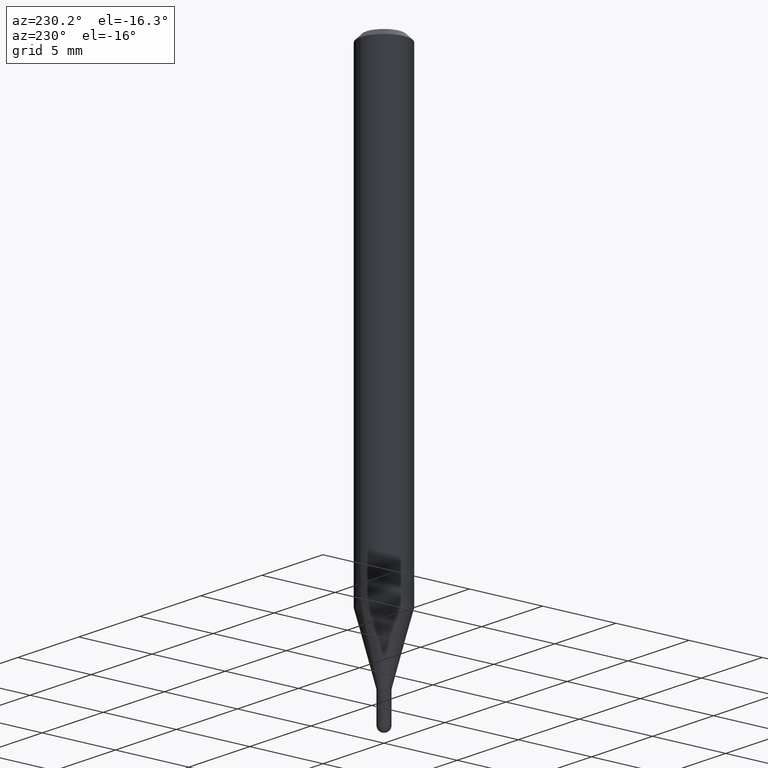
[diagram: clean part render]
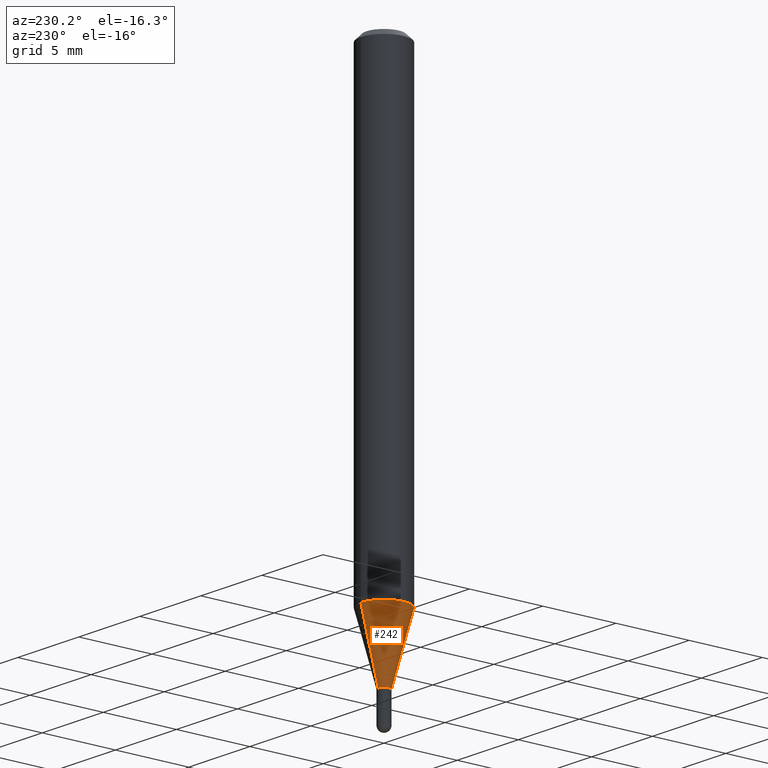
[diagram: same view with one face highlighted and labeled with its STEP entity id]
A machine part, auxiliary view. The second image highlights one B-rep face of the part: STEP entity #242.
In plain terms, the highlighted conical surface has half-angle 15 deg.
Its self-contained STEP definition (entity closure, byte-faithful):
#8 = LINE ( 'NONE', #475, #362 ) ;
#13 = EDGE_LOOP ( 'NONE', ( #136, #458, #26, #213 ) ) ;
#26 = ORIENTED_EDGE ( 'NONE', *, *, #404, .T. ) ;
#80 = DIRECTION ( 'NONE',  ( 1.839019923739648830E-15, 0.2588190451025317862, 0.9659258262890653146 ) ) ;
#104 = CIRCLE ( 'NONE', #508, 0.01549999999999992530 ) ;
#110 = DIRECTION ( 'NONE',  ( -6.982962677686265922E-15, -1.000000000000000000, 4.370956789862821150E-15 ) ) ;
#113 = CARTESIAN_POINT ( 'NONE',  ( 1.101341240428493874E-16, 0.01549999999999501082, -1.407000000000000250 ) ) ;
#136 = ORIENTED_EDGE ( 'NONE', *, *, #238, .F. ) ;
#144 = VERTEX_POINT ( 'NONE', #245 ) ;
#166 = EDGE_CURVE ( 'NONE', #267, #447, #104, .T. ) ;
#176 = VERTEX_POINT ( 'NONE', #398 ) ;
#213 = ORIENTED_EDGE ( 'NONE', *, *, #360, .F. ) ;
#220 = AXIS2_PLACEMENT_3D ( 'NONE', #391, #304, #462 ) ;
#223 = LINE ( 'NONE', #113, #494 ) ;
#238 = EDGE_CURVE ( 'NONE', #267, #176, #223, .T. ) ;
#242 = ADVANCED_FACE ( 'NONE', ( #272 ), #257, .T. ) ;
#243 = DIRECTION ( 'NONE',  ( -1.807323732225377865E-15, -0.2588190451025250138, 0.9659258262890670910 ) ) ;
#245 = CARTESIAN_POINT ( 'NONE',  ( -4.364351673553616434E-16, -0.06250000000000431599, -1.231593612044268093 ) ) ;
#257 = CONICAL_SURFACE ( 'NONE', #220, 0.01549999999999992530, 0.2617993877991573459 ) ;
#267 = VERTEX_POINT ( 'NONE', #349 ) ;
#272 = FACE_OUTER_BOUND ( 'NONE', #13, .T. ) ;
#280 = AXIS2_PLACEMENT_3D ( 'NONE', #354, #307, #110 ) ;
#304 = DIRECTION ( 'NONE',  ( -2.445459812913692826E-29, 3.491494217719718166E-15, 1.000000000000000000 ) ) ;
#307 = DIRECTION ( 'NONE',  ( -2.445459812913692826E-29, 3.491494217719718166E-15, 1.000000000000000000 ) ) ;
#308 = DIRECTION ( 'NONE',  ( -2.445459812913692826E-29, 3.491494217719718166E-15, 1.000000000000000000 ) ) ;
#324 = CIRCLE ( 'NONE', #280, 0.06250000000000000000 ) ;
#349 = CARTESIAN_POINT ( 'NONE',  ( 2.771116669464712182E-16, 0.01549999999999501082, -1.407000000000000250 ) ) ;
#354 = CARTESIAN_POINT ( 'NONE',  ( 3.011812684095475893E-29, -4.300101975033104784E-15, -1.231593612044268315 ) ) ;
#357 = CARTESIAN_POINT ( 'NONE',  ( -1.082359215041021845E-16, -0.01550000000000483803, -1.407000000000000250 ) ) ;
#360 = EDGE_CURVE ( 'NONE', #176, #144, #324, .T. ) ;
#362 = VECTOR ( 'NONE', #243, 39.37007874015748854 ) ;
#391 = CARTESIAN_POINT ( 'NONE',  ( 3.440761956769566875E-29, -4.912532364331644444E-15, -1.407000000000000250 ) ) ;
#398 = CARTESIAN_POINT ( 'NONE',  ( 4.440892098500924943E-16, 0.06249999999999569095, -1.231593612044268538 ) ) ;
#404 = EDGE_CURVE ( 'NONE', #447, #144, #8, .T. ) ;
#434 = DIRECTION ( 'NONE',  ( -6.982962677686265922E-15, -1.000000000000000000, 0.000000000000000000 ) ) ;
#438 = CARTESIAN_POINT ( 'NONE',  ( 3.440761956769566875E-29, -4.912532364331644444E-15, -1.407000000000000250 ) ) ;
#447 = VERTEX_POINT ( 'NONE', #357 ) ;
#458 = ORIENTED_EDGE ( 'NONE', *, *, #166, .T. ) ;
#462 = DIRECTION ( 'NONE',  ( -6.982962677686265922E-15, -1.000000000000000000, 0.000000000000000000 ) ) ;
#475 = CARTESIAN_POINT ( 'NONE',  ( -1.082359215041021845E-16, -0.01550000000000483803, -1.407000000000000250 ) ) ;
#494 = VECTOR ( 'NONE', #80, 39.37007874015748143 ) ;
#508 = AXIS2_PLACEMENT_3D ( 'NONE', #438, #308, #434 ) ;